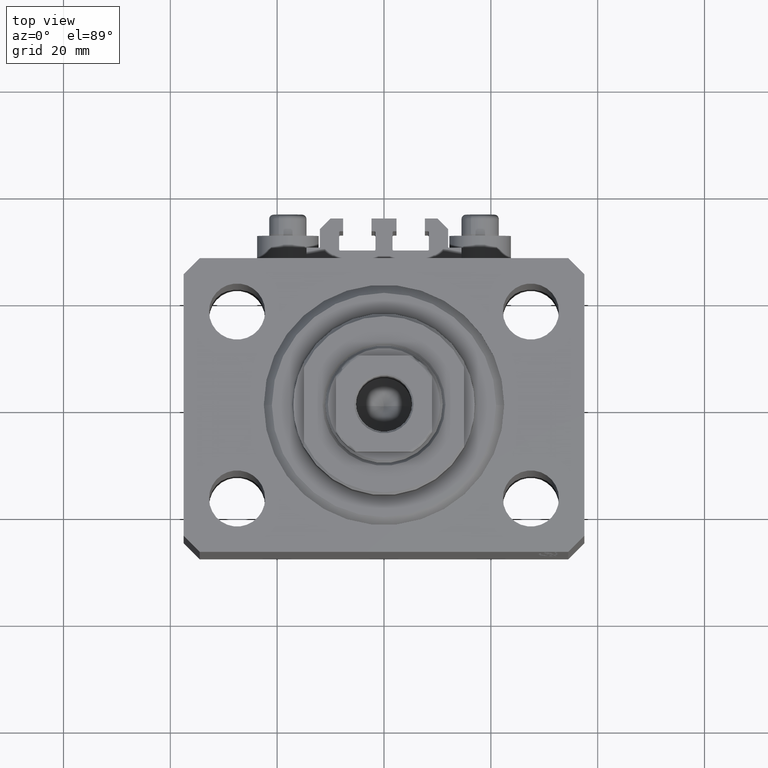
[diagram: clean part render]
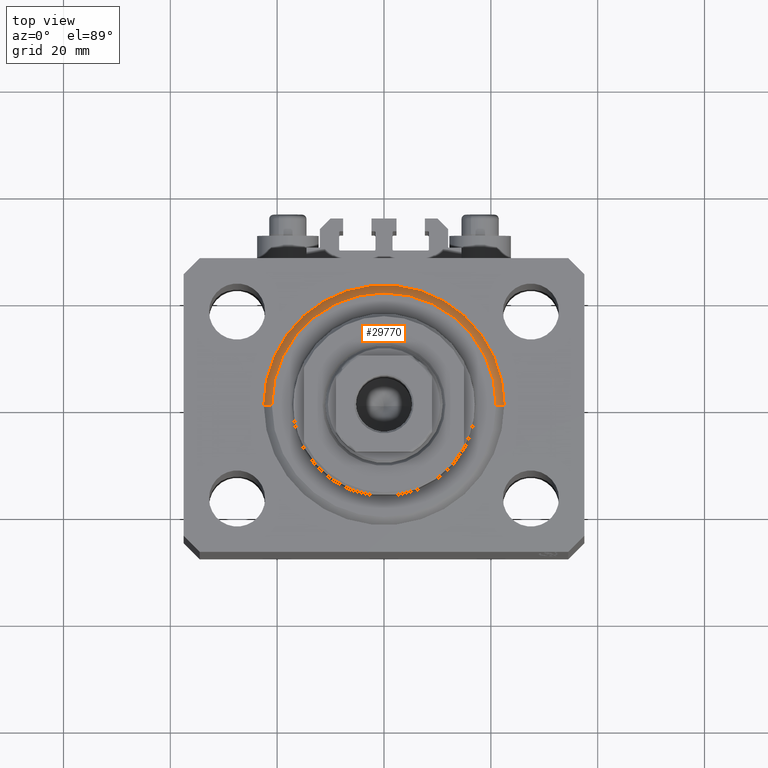
[diagram: same view with one face highlighted and labeled with its STEP entity id]
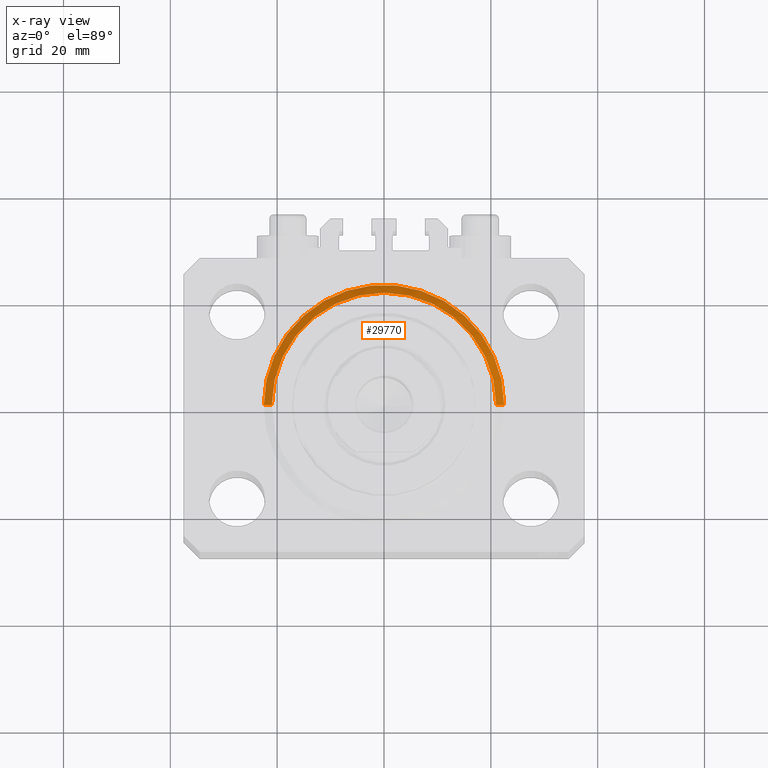
[diagram: x-ray of the same camera — body ghosted, the highlighted face saturated]
A machine part, top view. The second image highlights one B-rep face of the part: STEP entity #29770.
The next image is the same camera in x-ray: the body ghosted, the highlighted face saturated — about 0% of this face is hidden behind the body in this view.
In plain terms, the highlighted conical surface has half-angle 45 deg.
Its self-contained STEP definition (entity closure, byte-faithful):
#3364 = CARTESIAN_POINT ( 'NONE',  ( 20.99999999999998934, 0.000000000000000000, 0.000000000000000000 ) ) ;
#8905 = ORIENTED_EDGE ( 'NONE', *, *, #46969, .F. ) ;
#9926 = AXIS2_PLACEMENT_3D ( 'NONE', #14636, #25691, #21847 ) ;
#13392 = CARTESIAN_POINT ( 'NONE',  ( -20.99999999999998934, 2.663606788145492628E-15, 0.000000000000000000 ) ) ;
#14636 = CARTESIAN_POINT ( 'NONE',  ( 0.000000000000000000, 0.000000000000000000, 0.000000000000000000 ) ) ;
#14894 = CARTESIAN_POINT ( 'NONE',  ( 0.000000000000000000, 0.000000000000000000, 1.500000000000001332 ) ) ;
#15372 = FACE_OUTER_BOUND ( 'NONE', #46612, .T. ) ;
#18594 = EDGE_CURVE ( 'NONE', #37834, #29659, #30319, .T. ) ;
#21425 = CIRCLE ( 'NONE', #9926, 20.99999999999998934 ) ;
#21847 = DIRECTION ( 'NONE',  ( 1.000000000000000000, 0.000000000000000000, 0.000000000000000000 ) ) ;
#22444 = EDGE_CURVE ( 'NONE', #42442, #37834, #21425, .T. ) ;
#22487 = CARTESIAN_POINT ( 'NONE',  ( -22.50000000000000355, 0.000000000000000000, 1.500000000000001332 ) ) ;
#23476 = ORIENTED_EDGE ( 'NONE', *, *, #22444, .F. ) ;
#24747 = ORIENTED_EDGE ( 'NONE', *, *, #35625, .T. ) ;
#25691 = DIRECTION ( 'NONE',  ( -0.000000000000000000, -0.000000000000000000, -1.000000000000000000 ) ) ;
#25940 = DIRECTION ( 'NONE',  ( -0.000000000000000000, -0.000000000000000000, 1.000000000000000000 ) ) ;
#26340 = CARTESIAN_POINT ( 'NONE',  ( -22.50000000000000355, 2.755455298081545172E-15, 1.500000000000001332 ) ) ;
#26666 = DIRECTION ( 'NONE',  ( 1.000000000000000000, 0.000000000000000000, 0.000000000000000000 ) ) ;
#29659 = VERTEX_POINT ( 'NONE', #37455 ) ;
#29770 = ADVANCED_FACE ( 'NONE', ( #15372 ), #44582, .T. ) ;
#29834 = DIRECTION ( 'NONE',  ( 0.7071067811865500152, 0.000000000000000000, 0.7071067811865451302 ) ) ;
#30008 = AXIS2_PLACEMENT_3D ( 'NONE', #14894, #25940, #26666 ) ;
#30319 = LINE ( 'NONE', #33669, #42034 ) ;
#30647 = DIRECTION ( 'NONE',  ( -0.7071067811865500152, 8.659560562354963673E-17, 0.7071067811865451302 ) ) ;
#32623 = ORIENTED_EDGE ( 'NONE', *, *, #18594, .F. ) ;
#33438 = VERTEX_POINT ( 'NONE', #22487 ) ;
#33669 = CARTESIAN_POINT ( 'NONE',  ( 22.50000000000000355, 0.000000000000000000, 1.500000000000001332 ) ) ;
#34511 = DIRECTION ( 'NONE',  ( -0.000000000000000000, -0.000000000000000000, 1.000000000000000000 ) ) ;
#35478 = AXIS2_PLACEMENT_3D ( 'NONE', #45089, #34511, #39237 ) ;
#35625 = EDGE_CURVE ( 'NONE', #42442, #33438, #41224, .T. ) ;
#37455 = CARTESIAN_POINT ( 'NONE',  ( 22.50000000000000355, 2.755455298081545172E-15, 1.500000000000001332 ) ) ;
#37834 = VERTEX_POINT ( 'NONE', #3364 ) ;
#39237 = DIRECTION ( 'NONE',  ( 1.000000000000000000, 0.000000000000000000, 0.000000000000000000 ) ) ;
#40141 = VECTOR ( 'NONE', #30647, 1000.000000000000114 ) ;
#41224 = LINE ( 'NONE', #26340, #40141 ) ;
#42034 = VECTOR ( 'NONE', #29834, 1000.000000000000114 ) ;
#42442 = VERTEX_POINT ( 'NONE', #13392 ) ;
#43152 = CIRCLE ( 'NONE', #35478, 22.50000000000000355 ) ;
#44582 = CONICAL_SURFACE ( 'NONE', #30008, 22.50000000000000355, 0.7853981633974517207 ) ;
#45089 = CARTESIAN_POINT ( 'NONE',  ( 0.000000000000000000, 0.000000000000000000, 1.500000000000001332 ) ) ;
#46612 = EDGE_LOOP ( 'NONE', ( #23476, #24747, #8905, #32623 ) ) ;
#46969 = EDGE_CURVE ( 'NONE', #29659, #33438, #43152, .T. ) ;